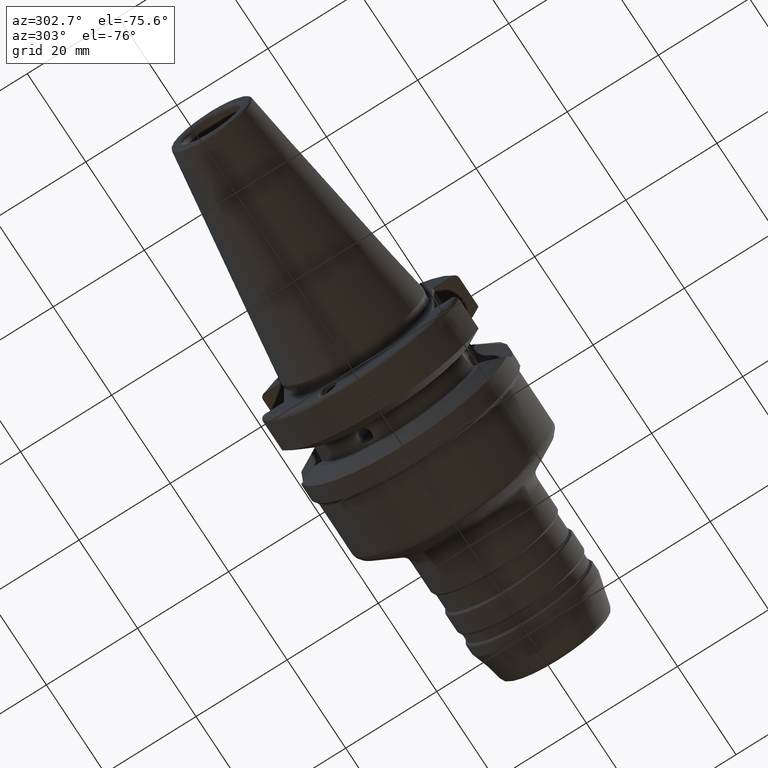
[diagram: clean part render]
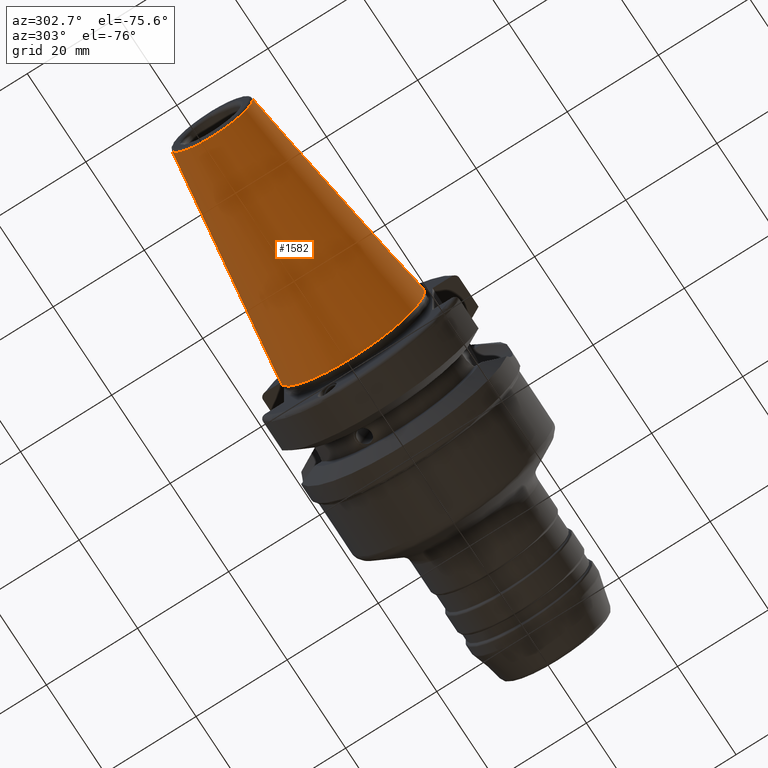
[diagram: same view with one face highlighted and labeled with its STEP entity id]
A machine part, auxiliary view. The second image highlights one B-rep face of the part: STEP entity #1582.
In plain terms, the highlighted conical surface has half-angle 8.297 deg.
Its self-contained STEP definition (entity closure, byte-faithful):
#115=CONICAL_SURFACE('',#1821,12.3770304778568,0.144812498238939);
#190=LINE('',#3109,#265);
#265=VECTOR('',#2330,12.3770304778568);
#394=FACE_OUTER_BOUND('',#500,.T.);
#500=EDGE_LOOP('',(#1435,#1436,#1437,#1438,#1439));
#606=CIRCLE('',#1818,8.87906095571352);
#607=CIRCLE('',#1819,8.87906095571352);
#609=CIRCLE('',#1822,15.875);
#756=VERTEX_POINT('',#3101);
#757=VERTEX_POINT('',#3102);
#758=VERTEX_POINT('',#3107);
#987=EDGE_CURVE('',#756,#757,#606,.T.);
#988=EDGE_CURVE('',#757,#756,#607,.T.);
#990=EDGE_CURVE('',#758,#758,#609,.T.);
#991=EDGE_CURVE('',#758,#756,#190,.T.);
#1435=ORIENTED_EDGE('',*,*,#990,.F.);
#1436=ORIENTED_EDGE('',*,*,#991,.T.);
#1437=ORIENTED_EDGE('',*,*,#987,.T.);
#1438=ORIENTED_EDGE('',*,*,#988,.T.);
#1439=ORIENTED_EDGE('',*,*,#991,.F.);
#1582=ADVANCED_FACE('',(#394),#115,.T.);
#1818=AXIS2_PLACEMENT_3D('',#3103,#2320,#2321);
#1819=AXIS2_PLACEMENT_3D('',#3104,#2322,#2323);
#1821=AXIS2_PLACEMENT_3D('',#3106,#2326,#2327);
#1822=AXIS2_PLACEMENT_3D('',#3108,#2328,#2329);
#2320=DIRECTION('center_axis',(1.,1.62798202122572E-21,0.));
#2321=DIRECTION('ref_axis',(0.,0.,-1.));
#2322=DIRECTION('center_axis',(1.,1.62798202122572E-21,0.));
#2323=DIRECTION('ref_axis',(0.,0.,-1.));
#2326=DIRECTION('center_axis',(1.,1.62798202122572E-21,0.));
#2327=DIRECTION('ref_axis',(0.,1.,0.));
#2328=DIRECTION('center_axis',(1.,1.62798202122572E-21,0.));
#2329=DIRECTION('ref_axis',(0.,0.,-1.));
#2330=DIRECTION('',(-0.989532981063282,0.144306893071729,1.76724974695192E-17));
#3101=CARTESIAN_POINT('',(-47.9721534465359,-8.87906095571352,-1.08737135788488E-15));
#3102=CARTESIAN_POINT('',(-47.9721534465359,9.94286113939637E-16,8.87906095571352));
#3103=CARTESIAN_POINT('Origin',(-47.9721534465359,2.08165747182452E-15,
0.));
#3104=CARTESIAN_POINT('Origin',(-47.9721534465359,2.08165747182452E-15,
0.));
#3106=CARTESIAN_POINT('Origin',(-23.9860767232679,2.08169652072618E-15,
0.));
#3107=CARTESIAN_POINT('',(-8.88178419700125E-15,-15.875,-1.94412679364642E-15));
#3108=CARTESIAN_POINT('Origin',(-4.44089209850063E-15,2.08173556962785E-15,
0.));
#3109=CARTESIAN_POINT('',(-23.9860767232679,-12.3770304778568,-1.51574907576565E-15));